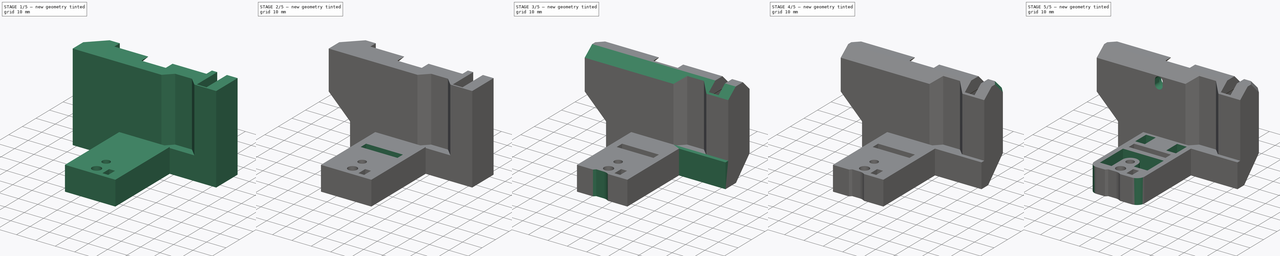
[diagram: build sequence overview — one tinted view per stage of 5, left to right]
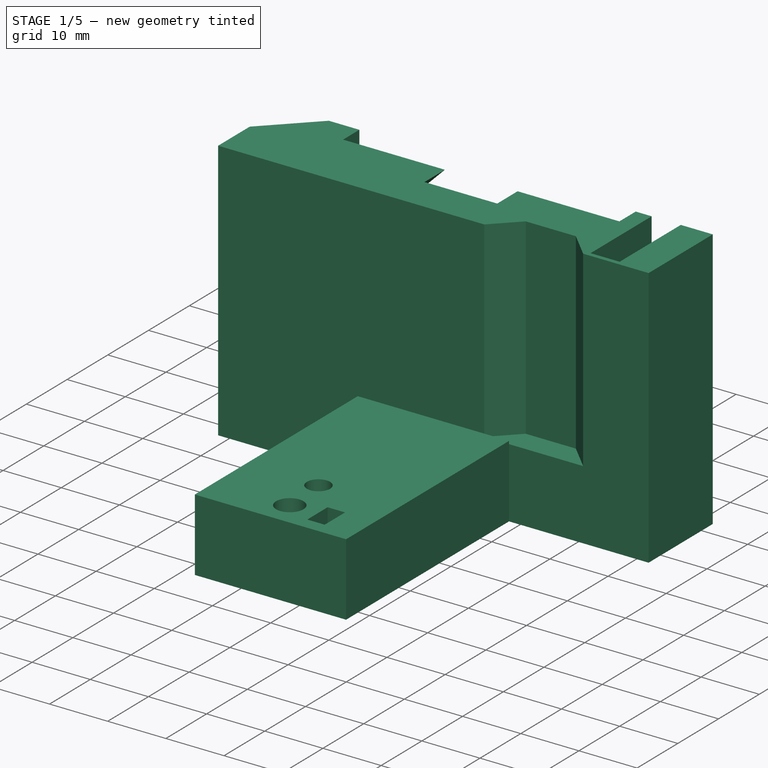
[diagram: stage 1 of 5 — iso view after this stage's code; geometry added in this stage tinted green]
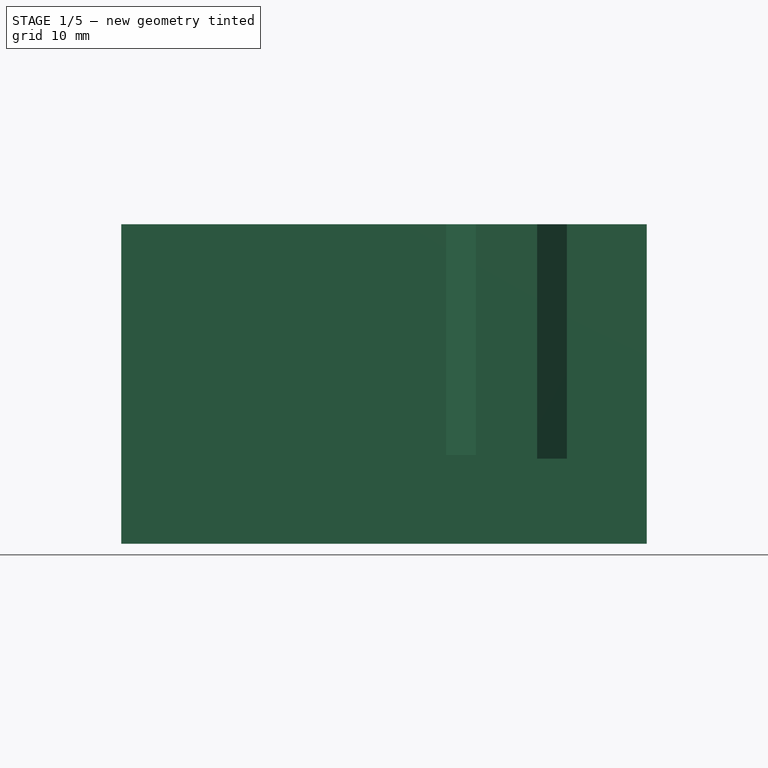
[diagram: stage 1 of 5 — front view after this stage's code; geometry added in this stage tinted green]
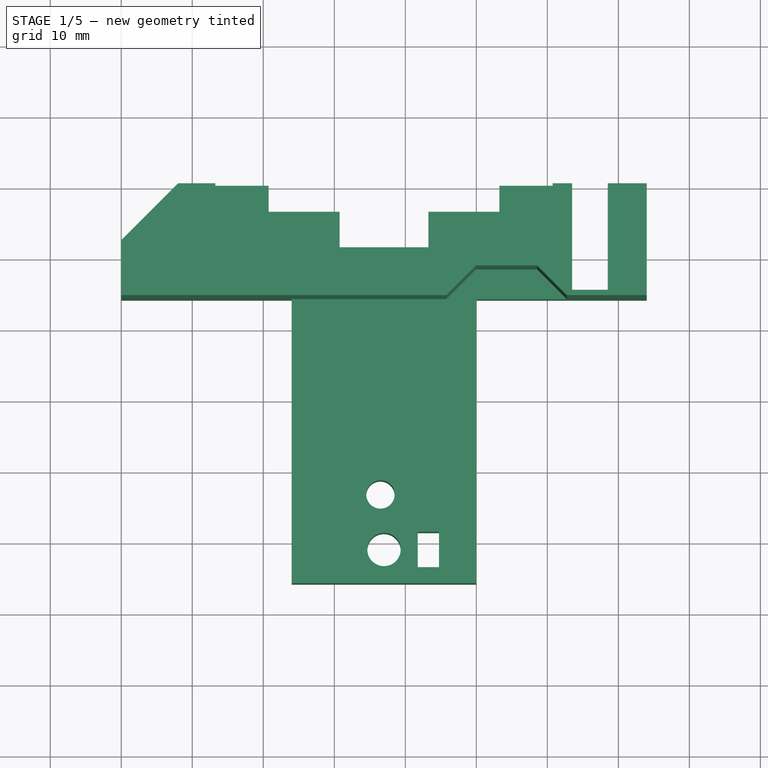
[diagram: stage 1 of 5 — top view after this stage's code; geometry added in this stage tinted green]
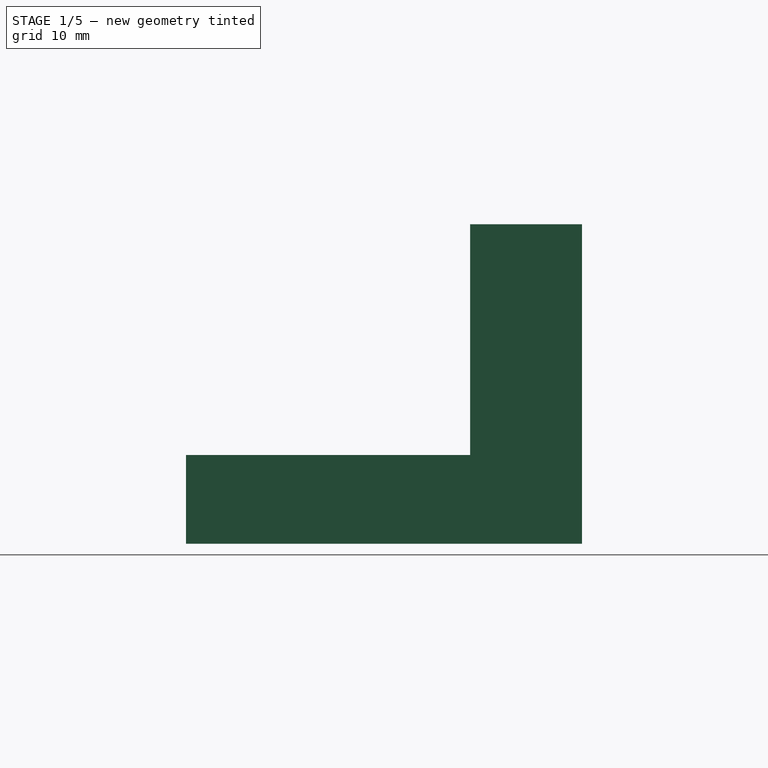
[diagram: stage 1 of 5 — right view after this stage's code; geometry added in this stage tinted green]
FCSTD DOCUMENT  (FreeCAD 0.18R4 (GitTag))
Label: x_carriage_cover_v2
License: All rights reserved
LicenseURL: http://en.wikipedia.org/wiki/All_rights_reserved
objects: Sketcher::SketchObject×20, PartDesign::Pocket×17, PartDesign::Fillet×5, PartDesign::Chamfer×4, PartDesign::Pad×3, PartDesign::Body×1
note: 70 computed .brp shape members not serialized (recipe doc carries the construction recipe); baked Part::Feature solids carry a one-line shape summary decoded from their .brp

FEATURE [Sketcher::SketchObject] Sketch
  MapMode = 5
  Support = -> [XY_Plane]
  sketch-geometry (8):
    g0: LineSegment StartX=74 StartY=-15.75 StartZ=0 EndX=74 EndY=0 EndZ=0
    g1: LineSegment StartX=74 StartY=0 StartZ=0 EndX=0 EndY=0 EndZ=0
    g2: LineSegment StartX=0 StartY=0 StartZ=0 EndX=0 EndY=-15.75 EndZ=0
    g3: LineSegment StartX=0 StartY=-15.75 StartZ=0 EndX=24 EndY=-15.75 EndZ=0
    g4: LineSegment StartX=24 StartY=-15.75 StartZ=0 EndX=24 EndY=-55.75 EndZ=0
    g5: LineSegment StartX=24 StartY=-55.75 StartZ=0 EndX=50 EndY=-55.75 EndZ=0
    g6: LineSegment StartX=50 StartY=-55.75 StartZ=0 EndX=50 EndY=-15.75 EndZ=0
    g7: LineSegment StartX=50 StartY=-15.75 StartZ=0 EndX=74 EndY=-15.75 EndZ=0
  constraints (23):
    c: PointOnObject(g2,g-2)
    c: Vertical(g0)
    c: Coincident(g0,g1)
    c: Coincident(g1,g-1)
    c: Horizontal(g1)
    c: Coincident(g1,g2)
    c: DistanceX(g2,g0) = 74
    c: DistanceY(g0,g0) = 15.75
    c: Coincident(g2,g3)
    c: Horizontal(g3)
    c: Coincident(g3,g4)
    c: Vertical(g4)
    c: Coincident(g4,g5)
    c: Horizontal(g5)
    c: Coincident(g5,g6)
    c: Vertical(g6)
    c: Coincident(g6,g7)
    c: Coincident(g7,g0)
    c: Horizontal(g7)
    c: Equal(g2,g0)
    c: Equal(g3,g7)
    c: DistanceX(g5,g5) = 26
    c: DistanceY(g6,g6) = 40
FEATURE [PartDesign::Pad] Pad
  Length = 45
  Length2 = 100
  Profile = -> Sketch
  Refine = true
  Type = 0
FEATURE [Sketcher::SketchObject] Sketch001
  MapMode = 5
  Placement = pos=(0,0,0) rot=(1,0,0;3.14159rad)
  Support = -> [Pad]
  sketch-geometry (13):
    g0: Circle CenterX=36.5 CenterY=43.25 CenterZ=0 NormalX=0 NormalY=0 NormalZ=1 AngleXU=0 Radius=2
    g1: Circle CenterX=37 CenterY=51 CenterZ=0 NormalX=0 NormalY=0 NormalZ=1 AngleXU=0 Radius=2.35
    g2: LineSegment StartX=41.75 StartY=53.5 StartZ=0 EndX=44.75 EndY=53.5 EndZ=0
    g3: LineSegment StartX=44.75 StartY=53.5 StartZ=0 EndX=44.75 EndY=48.5 EndZ=0
    g4: LineSegment StartX=44.75 StartY=48.5 StartZ=0 EndX=41.75 EndY=48.5 EndZ=0
    g5: LineSegment StartX=41.75 StartY=48.5 StartZ=0 EndX=41.75 EndY=53.5 EndZ=0
    g6: LineSegment StartX=0 StartY=8 StartZ=0 EndX=8 EndY=0 EndZ=0
    g7: LineSegment StartX=8 StartY=0 StartZ=0 EndX=0 EndY=0 EndZ=0
    g8: LineSegment StartX=0 StartY=0 StartZ=0 EndX=0 EndY=8 EndZ=0
    g9: LineSegment StartX=68.5 StartY=0 StartZ=0 EndX=63.5 EndY=0 EndZ=0
    g10: LineSegment StartX=63.5 StartY=0 StartZ=0 EndX=63.5 EndY=15 EndZ=0
    g11: LineSegment StartX=63.5 StartY=15 StartZ=0 EndX=68.5 EndY=15 EndZ=0
    g12: LineSegment StartX=68.5 StartY=15 StartZ=0 EndX=68.5 EndY=0 EndZ=0
  constraints (38):
    c: DistanceX(g0) = 36.5
    c: DistanceY(g0) = 43.25
    c: Radius(g0) = 2
    c: Radius(g1) = 2.35
    c: DistanceX(g0,g1) = 0.5
    c: DistanceY(g1) = 51
    c: Coincident(g2,g3)
    c: Coincident(g3,g4)
    c: Coincident(g4,g5)
    c: Coincident(g5,g2)
    c: Horizontal(g2)
    c: Horizontal(g4)
    c: Vertical(g3)
    c: Vertical(g5)
    c: DistanceX(g1,g2) = 4.75
    c: DistanceX(g2,g2) = 3
    c: DistanceY(g3,g3) = 5
    c: DistanceY(g4,g1) = 2.5
    c: PointOnObject(g6,g-2)
    c: Coincident(g6,g7)
    c: Coincident(g7,g-1)
    c: Horizontal(g7)
    c: Coincident(g7,g8)
    c: Coincident(g8,g6)
    c: Equal(g7,g8)
    c: DistanceY(g8,g8) = 8
    c: Coincident(g9,g10)
    c: Coincident(g10,g11)
    c: Coincident(g11,g12)
    c: Coincident(g12,g9)
    c: Horizontal(g9)
    c: Horizontal(g11)
    c: Vertical(g10)
    c: Vertical(g12)
    c: PointOnObject(g9,g-1)
    c: DistanceY(g10,g10) = 15
    c: DistanceX(g11,g11) = 5
    c: DistanceX(g9) = 63.5
FEATURE [PartDesign::Pocket] Pocket
  BaseFeature = -> Pad
  Length = 5
  Length2 = 100
  Profile = -> Sketch001
  Refine = true
  Type = 1
FEATURE [Sketcher::SketchObject] Sketch002
  MapMode = 5
  Placement = pos=(74,0,0) rot=(0.57735,0.57735,0.57735;2.0944rad)
  Support = -> [Pocket]
  sketch-geometry (4):
    g0: LineSegment StartX=-15.75 StartY=45 StartZ=0 EndX=-60.75 EndY=45 EndZ=0
    g1: LineSegment StartX=-60.75 StartY=45 StartZ=0 EndX=-60.75 EndY=12.5 EndZ=0
    g2: LineSegment StartX=-60.75 StartY=12.5 StartZ=0 EndX=-15.75 EndY=12.5 EndZ=0
    g3: LineSegment StartX=-15.75 StartY=12.5 StartZ=0 EndX=-15.75 EndY=45 EndZ=0
  constraints (12):
    c: Coincident(g0,g1)
    c: Coincident(g1,g2)
    c: Coincident(g2,g3)
    c: Coincident(g3,g0)
    c: Horizontal(g0)
    c: Horizontal(g2)
    c: Vertical(g1)
    c: Vertical(g3)
    c: DistanceX(g2) = -15.75
    c: DistanceY(g2) = 12.5
    c: DistanceY(g3,g3) = 32.5
    c: DistanceX(g0,g0) = 45
FEATURE [PartDesign::Pocket] Pocket001
  BaseFeature = -> Pocket
  Length = 5
  Length2 = 100
  Profile = -> Sketch002
  Refine = true
  Type = 1
FEATURE [Sketcher::SketchObject] Sketch003
  MapMode = 5
  Placement = pos=(0,0,45) rot=(0,0,1;0rad)
  Support = -> [Pocket001]
  sketch-geometry (4):
    g0: LineSegment StartX=45.75 StartY=-15.75 StartZ=0 EndX=49.9375 EndY=-11.5625 EndZ=0
    g1: LineSegment StartX=49.9375 StartY=-11.5625 StartZ=0 EndX=58.5625 EndY=-11.5625 EndZ=0
    g2: LineSegment StartX=58.5625 StartY=-11.5625 StartZ=0 EndX=62.75 EndY=-15.75 EndZ=0
    g3: LineSegment StartX=62.75 StartY=-15.75 StartZ=0 EndX=45.75 EndY=-15.75 EndZ=0
  constraints (12):
    c: Coincident(g0,g1)
    c: Horizontal(g1)
    c: Coincident(g1,g2)
    c: Coincident(g2,g3)
    c: Coincident(g3,g0)
    c: Horizontal(g3)
    c: DistanceX(g0) = 45.75
    c: DistanceY(g0) = -15.75
    c: Angle(g0) = 0.785398
    c: Perpendicular(g2,g0)
    c: DistanceX(g1,g1) = 8.625
    c: DistanceX(g3,g3) = 17
FEATURE [PartDesign::Pocket] Pocket002
  BaseFeature = -> Pocket001
  Length = 33
  Length2 = 100
  Profile = -> Sketch003
  Refine = true
  Type = 0
FEATURE [Sketcher::SketchObject] Sketch004
  MapMode = 5
  Placement = pos=(0,0,0) rot=(0,0.707107,0.707107;3.14159rad)
  Support = -> [Pocket002]
  sketch-geometry (9):
    g0: LineSegment StartX=-43.25 StartY=45 StartZ=0 EndX=-53.25 EndY=35 EndZ=0
    g1: LineSegment StartX=-53.25 StartY=35 StartZ=0 EndX=-53.25 EndY=0 EndZ=0
    g2: LineSegment StartX=-53.25 StartY=0 StartZ=0 EndX=-20.75 EndY=0 EndZ=0
    g3: LineSegment StartX=-20.75 StartY=0 StartZ=0 EndX=-20.75 EndY=35 EndZ=0
    g4: LineSegment StartX=-20.75 StartY=35 StartZ=0 EndX=-30.75 EndY=45 EndZ=0
    g5: LineSegment StartX=-30.75 StartY=45 StartZ=0 EndX=-43.25 EndY=45 EndZ=0
    g6: Circle CenterX=-57 CenterY=21 CenterZ=0 NormalX=0 NormalY=0 NormalZ=1 AngleXU=0 Radius=2.35
    g7: Circle CenterX=-17 CenterY=21 CenterZ=0 NormalX=0 NormalY=0 NormalZ=1 AngleXU=0 Radius=2.35
    g8: LineSegment [constr] StartX=-57 StartY=21 StartZ=0 EndX=-17 EndY=21 EndZ=0
  constraints (26):
    c: Coincident(g0,g1)
    c: PointOnObject(g1,g-1)
    c: Vertical(g1)
    c: Coincident(g1,g2)
    c: Horizontal(g2)
    c: Coincident(g2,g3)
    c: Vertical(g3)
    c: Coincident(g3,g4)
    c: Coincident(g4,g5)
    c: Horizontal(g5)
    c: Coincident(g0,g5)
    c: DistanceY(g4) = 45
    c: Angle(g4) = 2.35619
    c: Perpendicular(g0,g4)
    c: DistanceX(g2) = -20.75
    c: DistanceX(g2,g2) = 32.5
    c: DistanceY(g3,g3) = 35
    c: Equal(g1,g3)
    c: Coincident(g8,g6)
    c: Coincident(g8,g7)
    c: Horizontal(g8)
    c: DistanceX(g7) = -17
    c: DistanceY(g7) = 21
    c: DistanceX(g8,g8) = 40
    c: Radius(g7) = 2.35
    c: Equal(g7,g6)
FEATURE [PartDesign::Pocket] Pocket003
  BaseFeature = -> Pocket002
  Length = 9
  Length2 = 100
  Profile = -> Sketch004
  Refine = true
  Type = 0
FEATURE [Sketcher::SketchObject] Sketch005
  MapMode = 5
  Placement = pos=(0,0,0) rot=(0,0.707107,0.707107;3.14159rad)
  Support = -> [Pocket003]
  sketch-geometry (4):
    g0: LineSegment StartX=-60.75 StartY=45 StartZ=0 EndX=-13.25 EndY=45 EndZ=0
    g1: LineSegment StartX=-13.25 StartY=45 StartZ=0 EndX=-13.25 EndY=25 EndZ=0
    g2: LineSegment StartX=-13.25 StartY=25 StartZ=0 EndX=-60.75 EndY=25 EndZ=0
    g3: LineSegment StartX=-60.75 StartY=25 StartZ=0 EndX=-60.75 EndY=45 EndZ=0
  constraints (12):
    c: Coincident(g0,g1)
    c: Coincident(g1,g2)
    c: Coincident(g2,g3)
    c: Coincident(g3,g0)
    c: Horizontal(g0)
    c: Horizontal(g2)
    c: Vertical(g1)
    c: Vertical(g3)
    c: DistanceX(g0) = -13.25
    c: DistanceY(g0) = 45
    c: DistanceX(g0,g0) = 47.5
    c: DistanceY(g1,g1) = 20
FEATURE [PartDesign::Pocket] Pocket004
  BaseFeature = -> Pocket003
  Length = 4
  Length2 = 100
  Profile = -> Sketch005
  Refine = true
  Type = 0
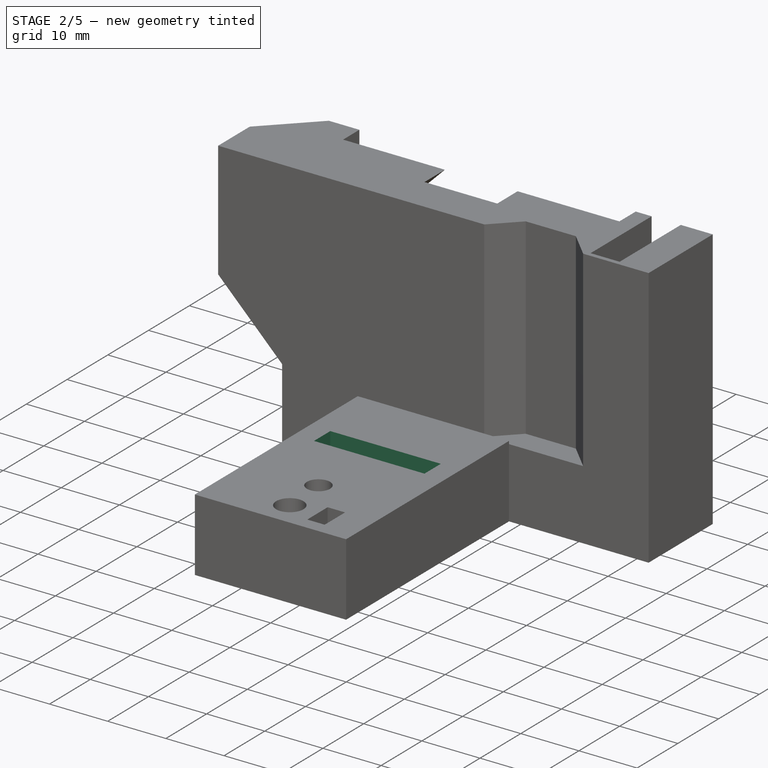
[diagram: stage 2 of 5 — iso view after this stage's code; geometry added in this stage tinted green]
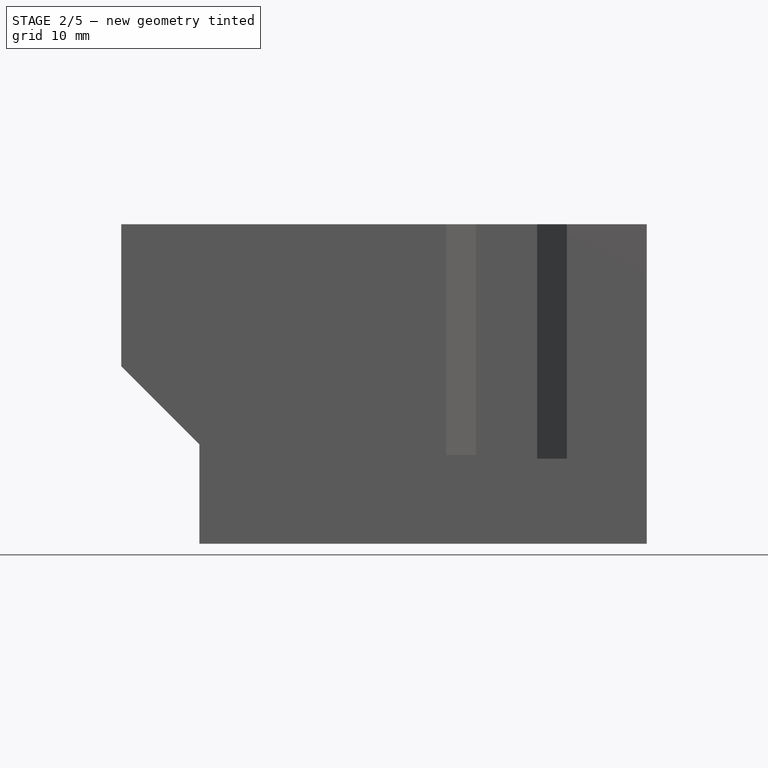
[diagram: stage 2 of 5 — front view after this stage's code; geometry added in this stage tinted green]
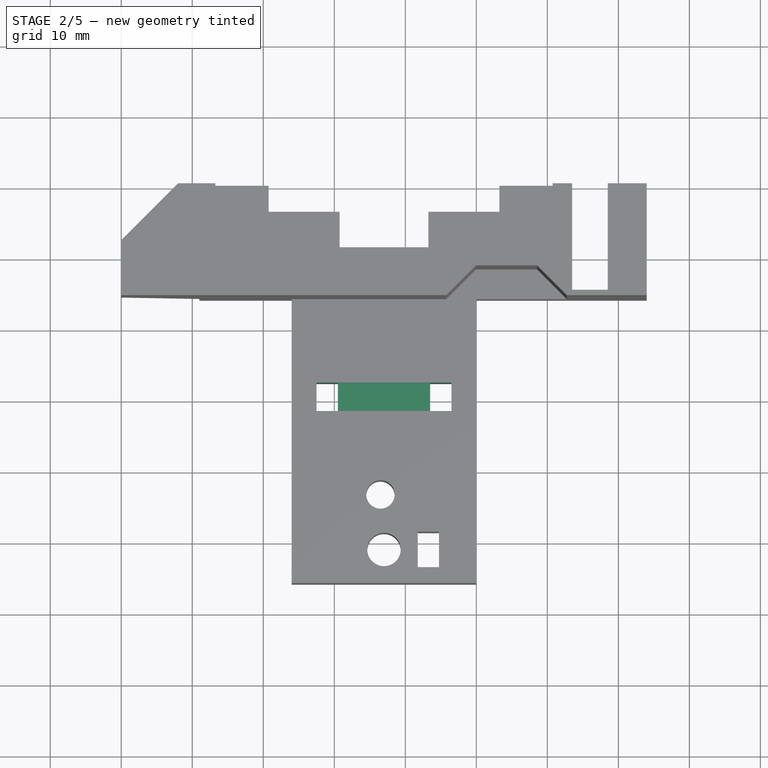
[diagram: stage 2 of 5 — top view after this stage's code; geometry added in this stage tinted green]
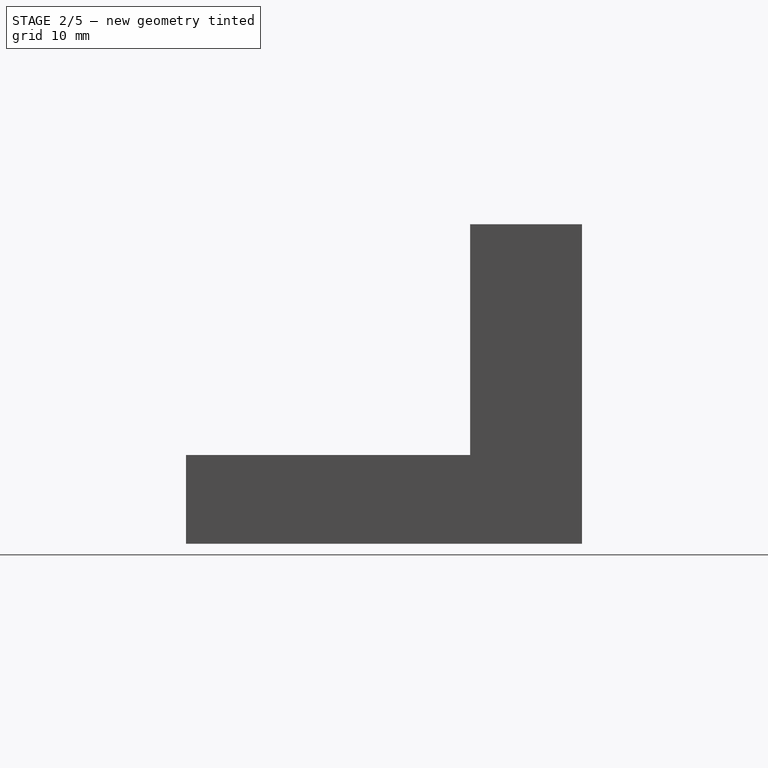
[diagram: stage 2 of 5 — right view after this stage's code; geometry added in this stage tinted green]
FEATURE [Sketcher::SketchObject] Sketch006
  MapMode = 5
  Placement = pos=(0,-9,2e-15) rot=(0,0.707107,0.707107;3.14159rad)
  Support = -> [Pocket004]
  sketch-geometry (4):
    g0: ArcOfCircle CenterX=-37 CenterY=4 CenterZ=0 NormalX=0 NormalY=0 NormalZ=1 AngleXU=0 Radius=4.5 StartAngle=7e-16 EndAngle=3.14159
    g1: ArcOfCircle CenterX=-37 CenterY=2e-16 CenterZ=0 NormalX=0 NormalY=0 NormalZ=1 AngleXU=0 Radius=4.5 StartAngle=3.14159 EndAngle=6.28319
    g2: LineSegment StartX=-41.5 StartY=4 StartZ=0 EndX=-41.5 EndY=0 EndZ=0
    g3: LineSegment StartX=-32.5 StartY=4 StartZ=0 EndX=-32.5 EndY=-9e-16 EndZ=0
  constraints (10):
    c: Tangent(g0,g3) = 1.5708
    c: Tangent(g0,g2) = -1.5708
    c: Tangent(g2,g1) = -1.5708
    c: Tangent(g3,g1) = 1.5708
    c: Vertical(g2)
    c: Equal(g0,g1)
    c: DistanceX(g0) = -37
    c: DistanceY(g0) = 4
    c: PointOnObject(g1,g-1)
    c: Radius(g0) = 4.5
FEATURE [PartDesign::Pocket] Pocket005
  BaseFeature = -> Pocket004
  Length = 30
  Length2 = 100
  Profile = -> Sketch006
  Refine = true
  Type = 0
FEATURE [Sketcher::SketchObject] Sketch007
  MapMode = 5
  Placement = pos=(0,0,0) rot=(1,0,0;3.14159rad)
  Support = -> [Pocket005]
  sketch-geometry (4):
    g0: LineSegment StartX=27.5 StartY=31.5 StartZ=0 EndX=46.5 EndY=31.5 EndZ=0
    g1: LineSegment StartX=46.5 StartY=31.5 StartZ=0 EndX=46.5 EndY=27.5 EndZ=0
    g2: LineSegment StartX=46.5 StartY=27.5 StartZ=0 EndX=27.5 EndY=27.5 EndZ=0
    g3: LineSegment StartX=27.5 StartY=27.5 StartZ=0 EndX=27.5 EndY=31.5 EndZ=0
  constraints (12):
    c: Coincident(g0,g1)
    c: Coincident(g1,g2)
    c: Coincident(g2,g3)
    c: Coincident(g3,g0)
    c: Horizontal(g0)
    c: Horizontal(g2)
    c: Vertical(g1)
    c: Vertical(g3)
    c: DistanceX(g2) = 27.5
    c: DistanceY(g2) = 27.5
    c: DistanceY(g3,g3) = 4
    c: DistanceX(g0,g0) = 19
FEATURE [PartDesign::Pocket] Pocket006
  BaseFeature = -> Pocket005
  Length = 3
  Length2 = 100
  Profile = -> Sketch007
  Refine = true
  Type = 0
FEATURE [Sketcher::SketchObject] Sketch008
  ExternalGeometry = -> [Pocket006]
  MapMode = 5
  Placement = pos=(0,-31.5,0) rot=(0,0.707107,0.707107;3.14159rad)
  Support = -> [Pocket006]
  sketch-geometry (8):
    g0: LineSegment StartX=-43.5 StartY=3 StartZ=0 EndX=-43.5 EndY=10 EndZ=0
    g1: LineSegment StartX=-43.5 StartY=10 StartZ=0 EndX=-30.5 EndY=10 EndZ=0
    g2: LineSegment StartX=-30.5 StartY=10 StartZ=0 EndX=-30.5 EndY=3 EndZ=0
    g3: LineSegment StartX=-30.5 StartY=3 StartZ=0 EndX=-27.5 EndY=3 EndZ=0
    g4: LineSegment StartX=-27.5 StartY=3 StartZ=0 EndX=-27.5 EndY=12.5 EndZ=0
    g5: LineSegment StartX=-27.5 StartY=12.5 StartZ=0 EndX=-46.5 EndY=12.5 EndZ=0
    g6: LineSegment StartX=-46.5 StartY=12.5 StartZ=0 EndX=-46.5 EndY=3 EndZ=0
    g7: LineSegment StartX=-46.5 StartY=3 StartZ=0 EndX=-43.5 EndY=3 EndZ=0
  constraints (22):
    c: Vertical(g0)
    c: Coincident(g0,g1)
    c: Horizontal(g1)
    c: Coincident(g1,g2)
    c: Vertical(g2)
    c: Coincident(g2,g3)
    c: Horizontal(g3)
    c: Coincident(g3,g4)
    c: Vertical(g4)
    c: Coincident(g4,g5)
    c: Horizontal(g5)
    c: Coincident(g5,g6)
    c: Vertical(g6)
    c: Coincident(g6,g7)
    c: Coincident(g7,g0)
    c: Horizontal(g7)
    c: Coincident(g3,g-4)
    c: Coincident(g6,g-3)
    c: DistanceY(g6,g6) = 9.5
    c: Equal(g3,g7)
    c: DistanceX(g7,g7) = 3
    c: DistanceY(g2,g2) = 7
FEATURE [PartDesign::Pocket] Pocket007
  BaseFeature = -> Pocket006
  Length = 4
  Length2 = 100
  Profile = -> Sketch008
  Refine = true
  Reversed = true
  Type = 0
FEATURE [Sketcher::SketchObject] Sketch009
  MapMode = 5
  Placement = pos=(0,0,0) rot=(0,0.707107,0.707107;3.14159rad)
  Support = -> [Pocket007]
  sketch-geometry (4):
    g0: LineSegment StartX=0 StartY=25 StartZ=0 EndX=-11 EndY=14 EndZ=0
    g1: LineSegment StartX=-11 StartY=14 StartZ=0 EndX=-11 EndY=0 EndZ=0
    g2: LineSegment StartX=-11 StartY=0 StartZ=0 EndX=0 EndY=0 EndZ=0
    g3: LineSegment StartX=0 StartY=0 StartZ=0 EndX=0 EndY=25 EndZ=0
  constraints (11):
    c: PointOnObject(g0,g-2)
    c: Coincident(g0,g1)
    c: Vertical(g1)
    c: Coincident(g1,g2)
    c: Coincident(g2,g-1)
    c: Horizontal(g2)
    c: Coincident(g2,g3)
    c: Coincident(g3,g0)
    c: DistanceY(g3,g3) = 25
    c: Angle(g0) = -2.35619
    c: DistanceX(g0,g0) = 11
FEATURE [PartDesign::Pocket] Pocket008
  BaseFeature = -> Pocket007
  Length = 5
  Length2 = 100
  Profile = -> Sketch009
  Refine = true
  Type = 1
FEATURE [Sketcher::SketchObject] Sketch010
  MapMode = 5
  Placement = pos=(0,0,0) rot=(0,0.707107,0.707107;3.14159rad)
  Support = -> [Pocket008]
  sketch-geometry (4):
    g0: LineSegment StartX=-63.5 StartY=39.25 StartZ=0 EndX=-62.25 EndY=38 EndZ=0
    g1: LineSegment StartX=-62.25 StartY=38 StartZ=0 EndX=-62.25 EndY=27 EndZ=0
    g2: LineSegment StartX=-62.25 StartY=27 StartZ=0 EndX=-63.5 EndY=27 EndZ=0
    g3: LineSegment StartX=-63.5 StartY=27 StartZ=0 EndX=-63.5 EndY=39.25 EndZ=0
  constraints (12):
    c: Coincident(g0,g1)
    c: Vertical(g1)
    c: Coincident(g1,g2)
    c: Horizontal(g2)
    c: Coincident(g2,g3)
    c: Coincident(g3,g0)
    c: Vertical(g3)
    c: Angle(g0) = -0.785398
    c: DistanceX(g2) = -63.5
    c: DistanceY(g2) = 27
    c: DistanceX(g2,g2) = 1.25
    c: DistanceY(g3,g3) = 12.25
FEATURE [PartDesign::Pocket] Pocket009
  BaseFeature = -> Pocket008
  Length = 15
  Length2 = 100
  Profile = -> Sketch010
  Refine = true
  Type = 0
FEATURE [Sketcher::SketchObject] Sketch011
  MapMode = 5
  Placement = pos=(32.5,0,0) rot=(0.57735,0.57735,0.57735;2.0944rad)
  Support = -> [Pocket009]
  sketch-geometry (3):
    g0: LineSegment StartX=-39 StartY=0 StartZ=0 EndX=-39 EndY=8.5 EndZ=0
    g1: LineSegment StartX=-39 StartY=8.5 StartZ=0 EndX=-30.5 EndY=8.5 EndZ=0
    g2: LineSegment StartX=-30.5 StartY=8.5 StartZ=0 EndX=-39 EndY=0 EndZ=0
  constraints (9):
    c: PointOnObject(g0,g-1)
    c: Vertical(g0)
    c: Coincident(g0,g1)
    c: Horizontal(g1)
    c: Coincident(g1,g2)
    c: Coincident(g2,g0)
    c: DistanceX(g0) = -39
    c: DistanceY(g0) = 8.5
    c: Equal(g1,g0)
FEATURE [PartDesign::Pad] Pad001
  BaseFeature = -> Pocket009
  Length = 9
  Length2 = 100
  Profile = -> Sketch011
  Refine = true
  Type = 0
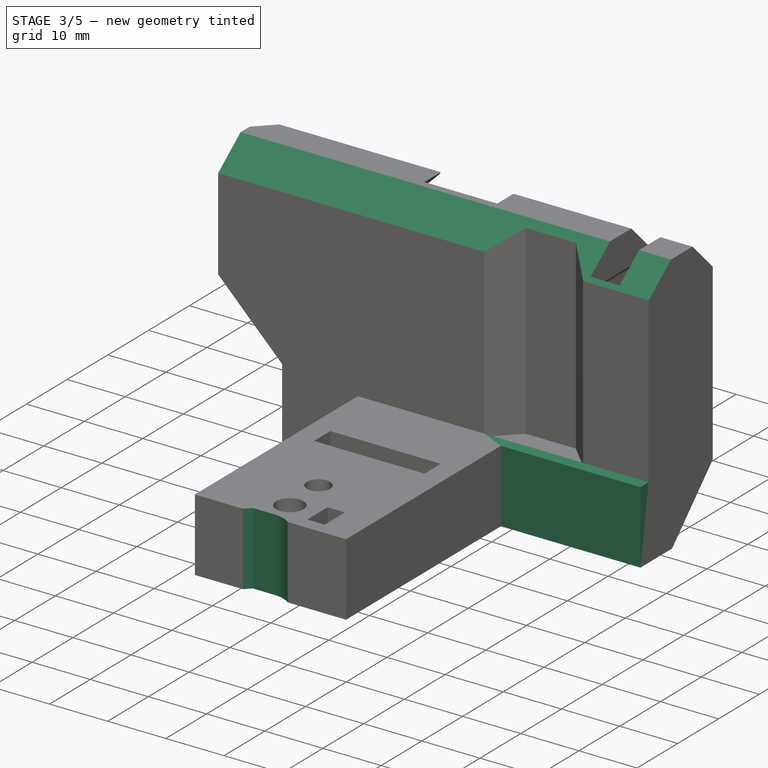
[diagram: stage 3 of 5 — iso view after this stage's code; geometry added in this stage tinted green]
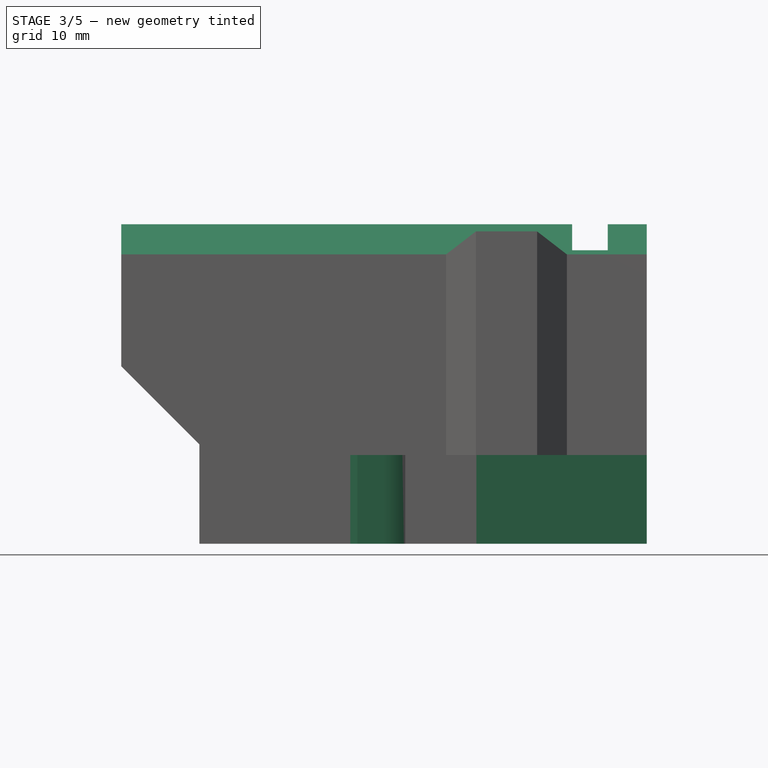
[diagram: stage 3 of 5 — front view after this stage's code; geometry added in this stage tinted green]
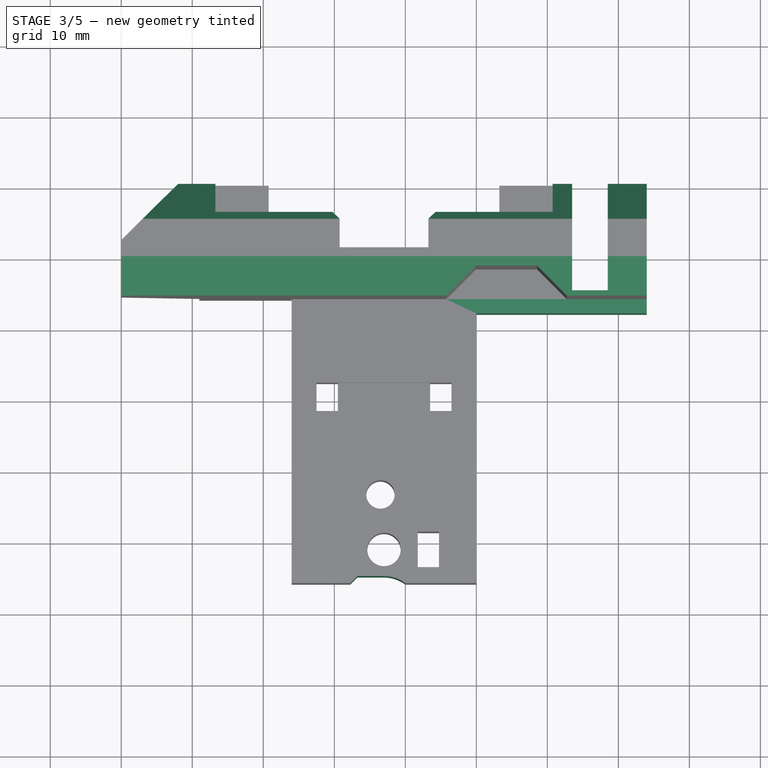
[diagram: stage 3 of 5 — top view after this stage's code; geometry added in this stage tinted green]
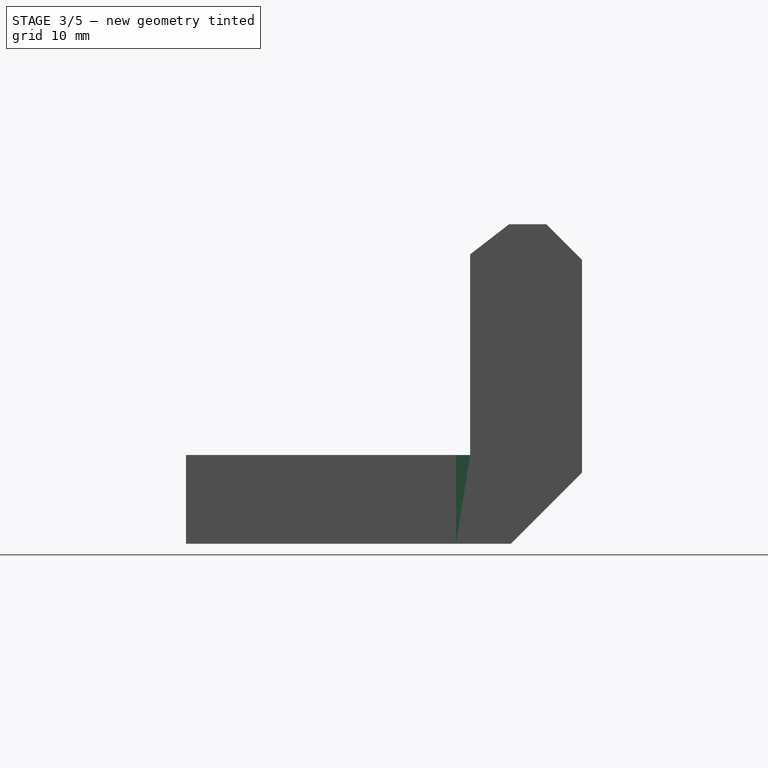
[diagram: stage 3 of 5 — right view after this stage's code; geometry added in this stage tinted green]
FEATURE [Sketcher::SketchObject] Sketch012
  MapMode = 5
  Placement = pos=(0,0,0) rot=(1,0,0;3.14159rad)
  Support = -> [Pad001]
  sketch-geometry (5):
    g0: LineSegment StartX=30 StartY=58 StartZ=0 EndX=33.25 EndY=54.75 EndZ=0
    g1: LineSegment StartX=33.25 StartY=54.75 StartZ=0 EndX=37 EndY=54.75 EndZ=0
    g2: ArcOfCircle CenterX=37 CenterY=59.75 CenterZ=0 NormalX=0 NormalY=0 NormalZ=1 AngleXU=0 Radius=5 StartAngle=4.71239 EndAngle=6.28319
    g3: LineSegment StartX=30 StartY=58 StartZ=0 EndX=30 EndY=59.75 EndZ=0
    g4: LineSegment StartX=30 StartY=59.75 StartZ=0 EndX=42 EndY=59.75 EndZ=0
  constraints (15):
    c: Coincident(g0,g1)
    c: Horizontal(g1)
    c: Coincident(g0,g3)
    c: Vertical(g3)
    c: Coincident(g3,g4)
    c: Horizontal(g4)
    c: Coincident(g2,g4)
    c: PointOnObject(g2,g4)
    c: Radius(g2) = 5
    c: Tangent(g2,g1) = -1.5708
    c: Angle(g0) = -0.785398
    c: DistanceX(g1,g1) = 3.75
    c: DistanceX(g2) = 37
    c: DistanceY(g2) = 59.75
    c: DistanceX(g4,g4) = 12
FEATURE [PartDesign::Pocket] Pocket010
  BaseFeature = -> Pad001
  Length = 5
  Length2 = 100
  Profile = -> Sketch012
  Refine = true
  Type = 1
FEATURE [Sketcher::SketchObject] Sketch013
  MapMode = 5
  Placement = pos=(0,0,0) rot=(1,0,0;3.14159rad)
  Support = -> [Pocket010]
  sketch-geometry (1):
    g0: Circle CenterX=37 CenterY=51 CenterZ=0 NormalX=0 NormalY=0 NormalZ=1 AngleXU=0 Radius=2.75
  constraints (3):
    c: Radius(g0) = 2.75
    c: DistanceX(g0) = 37
    c: DistanceY(g0) = 51
FEATURE [PartDesign::Pocket] Pocket011
  BaseFeature = -> Pocket010
  Length = 0.75
  Length2 = 100
  Profile = -> Sketch013
  Refine = true
  Type = 0
FEATURE [Sketcher::SketchObject] Sketch014
  MapMode = 5
  Placement = pos=(0,0,0) rot=(0,0.707107,0.707107;3.14159rad)
  Support = -> [Pocket011]
  sketch-geometry (3):
    g0: Circle CenterX=-57 CenterY=21 CenterZ=0 NormalX=0 NormalY=0 NormalZ=1 AngleXU=0 Radius=2.75
    g1: Circle CenterX=-17 CenterY=21 CenterZ=0 NormalX=0 NormalY=0 NormalZ=1 AngleXU=0 Radius=2.75
    g2: LineSegment [constr] StartX=-57 StartY=21 StartZ=0 EndX=-17 EndY=21 EndZ=0
  constraints (8):
    c: DistanceX(g1) = -17
    c: DistanceY(g1) = 21
    c: Radius(g1) = 2.75
    c: Coincident(g2,g0)
    c: Coincident(g2,g1)
    c: Horizontal(g2)
    c: DistanceX(g2,g2) = 40
    c: Equal(g0,g1)
FEATURE [PartDesign::Pocket] Pocket012
  BaseFeature = -> Pocket011
  Length = 0.75
  Length2 = 100
  Profile = -> Sketch014
  Refine = true
  Type = 0
FEATURE [Sketcher::SketchObject] Sketch015
  ExternalGeometry = -> [Pocket012]
  MapMode = 5
  Placement = pos=(0,-15.75,0) rot=(1,0,0;1.5708rad)
  Support = -> [Pocket012]
  sketch-geometry (4):
    g0: LineSegment StartX=74 StartY=0 StartZ=0 EndX=50 EndY=0 EndZ=0
    g1: LineSegment StartX=50 StartY=0 StartZ=0 EndX=50 EndY=12.5 EndZ=0
    g2: LineSegment StartX=50 StartY=12.5 StartZ=0 EndX=74 EndY=12.5 EndZ=0
    g3: LineSegment StartX=74 StartY=12.5 StartZ=0 EndX=74 EndY=0 EndZ=0
  constraints (10):
    c: Coincident(g0,g1)
    c: Coincident(g2,g3)
    c: Coincident(g3,g0)
    c: Horizontal(g0)
    c: Horizontal(g2)
    c: Vertical(g1)
    c: Vertical(g3)
    c: Coincident(g0,g-3)
    c: Coincident(g1,g2)
    c: Coincident(g1,g-4)
FEATURE [PartDesign::Pad] Pad002
  BaseFeature = -> Pocket012
  Length = 2
  Length2 = 100
  Profile = -> Sketch015
  Refine = true
  Type = 0
FEATURE [Sketcher::SketchObject] Sketch016
  MapMode = 5
  Placement = pos=(74,0,0) rot=(0.57735,0.57735,0.57735;2.0944rad)
  Support = -> [Pad002]
  sketch-geometry (9):
    g0: LineSegment StartX=-10 StartY=0 StartZ=0 EndX=0 EndY=10 EndZ=0
    g1: LineSegment StartX=0 StartY=10 StartZ=0 EndX=0 EndY=0 EndZ=0
    g2: LineSegment StartX=0 StartY=0 StartZ=0 EndX=-10 EndY=0 EndZ=0
    g3: LineSegment StartX=-5 StartY=45 StartZ=0 EndX=0 EndY=40 EndZ=0
    g4: LineSegment StartX=0 StartY=40 StartZ=0 EndX=0 EndY=45 EndZ=0
    g5: LineSegment StartX=0 StartY=45 StartZ=0 EndX=-5 EndY=45 EndZ=0
    g6: LineSegment StartX=-15.75 StartY=40.75 StartZ=0 EndX=-10.25 EndY=45 EndZ=0
    g7: LineSegment StartX=-10.25 StartY=45 StartZ=0 EndX=-15.75 EndY=45 EndZ=0
    g8: LineSegment StartX=-15.75 StartY=45 StartZ=0 EndX=-15.75 EndY=40.75 EndZ=0
  constraints (26):
    c: PointOnObject(g0,g-1)
    c: PointOnObject(g0,g-2)
    c: Coincident(g0,g1)
    c: Coincident(g1,g-1)
    c: Coincident(g1,g2)
    c: Coincident(g2,g0)
    c: Equal(g2,g1)
    c: DistanceY(g1,g1) = 10
    c: PointOnObject(g3,g-2)
    c: Coincident(g3,g4)
    c: Vertical(g4)
    c: Coincident(g4,g5)
    c: Coincident(g5,g3)
    c: Horizontal(g5)
    c: Equal(g4,g5)
    c: DistanceY(g4,g4) = 5
    c: DistanceY(g4) = 45
    c: Coincident(g6,g7)
    c: Horizontal(g7)
    c: Coincident(g7,g8)
    c: Coincident(g8,g6)
    c: Vertical(g8)
    c: PointOnObject(g6,g5)
    c: DistanceX(g7) = -15.75
    c: DistanceY(g8,g8) = 4.25
    c: DistanceX(g7,g7) = 5.5
FEATURE [PartDesign::Pocket] Pocket013
  BaseFeature = -> Pad002
  Length = 5
  Length2 = 100
  Profile = -> Sketch016
  Refine = true
  Type = 1
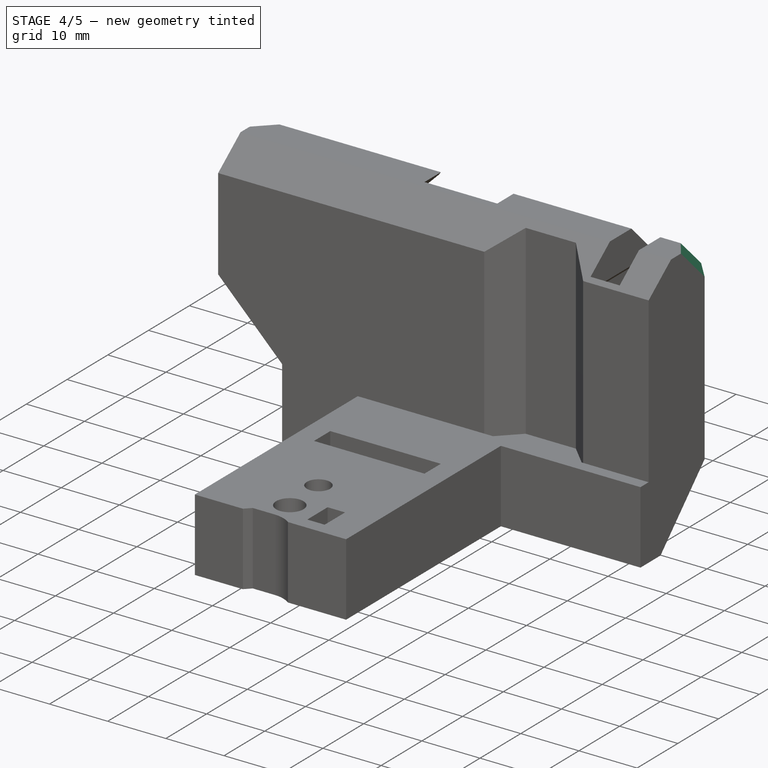
[diagram: stage 4 of 5 — iso view after this stage's code; geometry added in this stage tinted green]
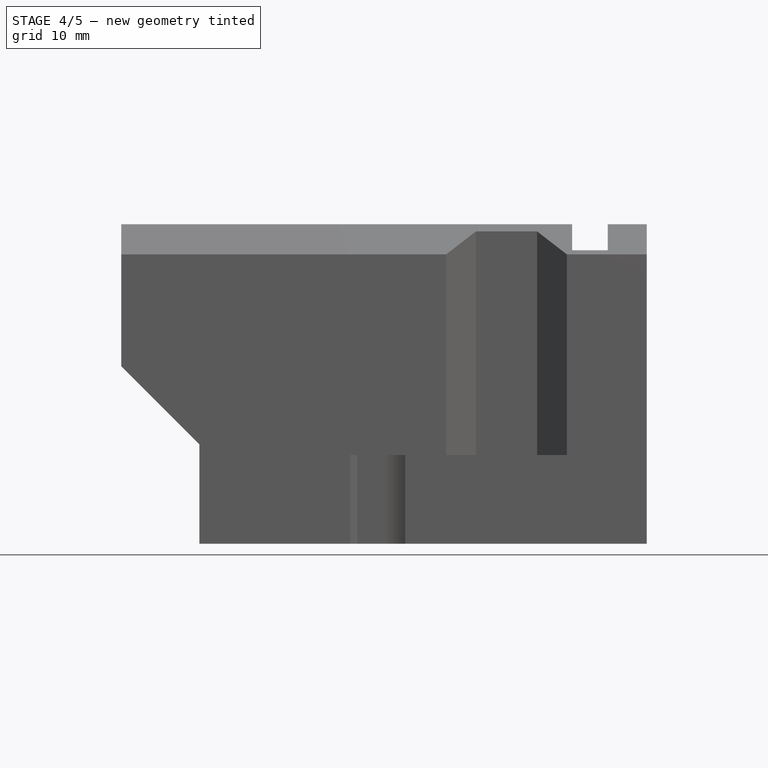
[diagram: stage 4 of 5 — front view after this stage's code; geometry added in this stage tinted green]
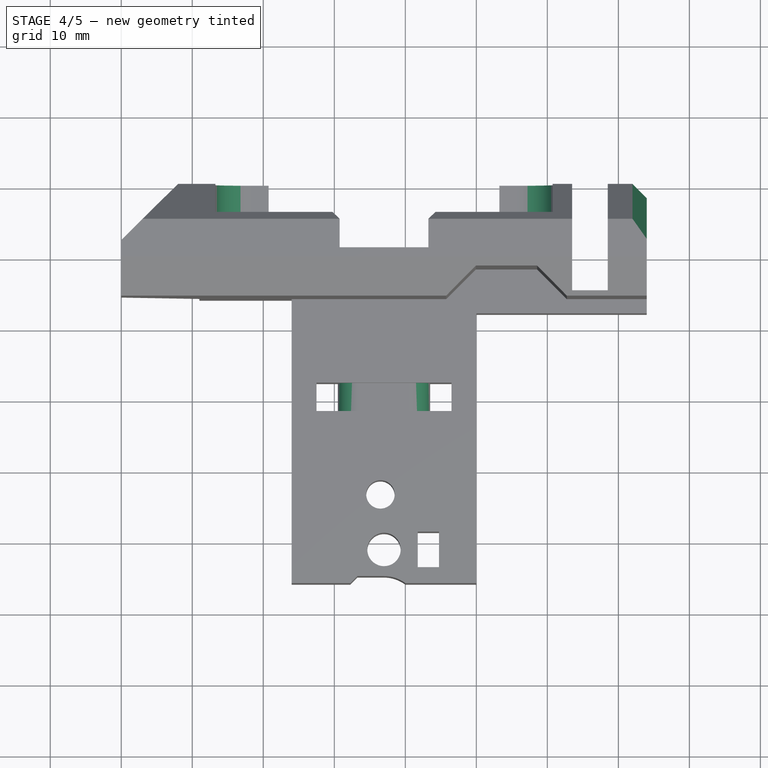
[diagram: stage 4 of 5 — top view after this stage's code; geometry added in this stage tinted green]
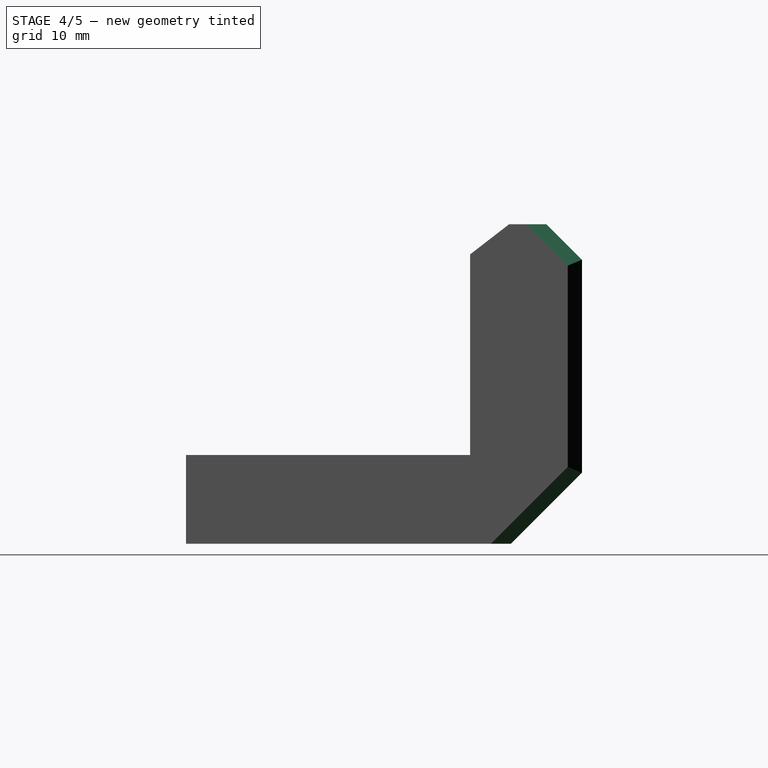
[diagram: stage 4 of 5 — right view after this stage's code; geometry added in this stage tinted green]
FEATURE [PartDesign::Chamfer] Chamfer
  Base = -> Pocket013 [Edge64,Edge65,Edge63]
  BaseFeature = -> Pocket013
  Size = 2
FEATURE [PartDesign::Fillet] Fillet
  Base = -> Chamfer [Edge177]
  BaseFeature = -> Chamfer
  Radius = 4
FEATURE [PartDesign::Chamfer] Chamfer001
  Base = -> Fillet [Edge32]
  BaseFeature = -> Fillet
  Size = 1.5
FEATURE [PartDesign::Chamfer] Chamfer002
  Base = -> Chamfer001 [Edge35,Edge34,Edge36,Edge37]
  BaseFeature = -> Chamfer001
  Size = 1
FEATURE [PartDesign::Fillet] Fillet001
  Base = -> Chamfer002 [Edge190,Edge189]
  BaseFeature = -> Chamfer002
  Radius = 3
FEATURE [PartDesign::Fillet] Fillet002
  Base = -> Fillet001 [Edge248,Edge243]
  BaseFeature = -> Fillet001
  Radius = 5
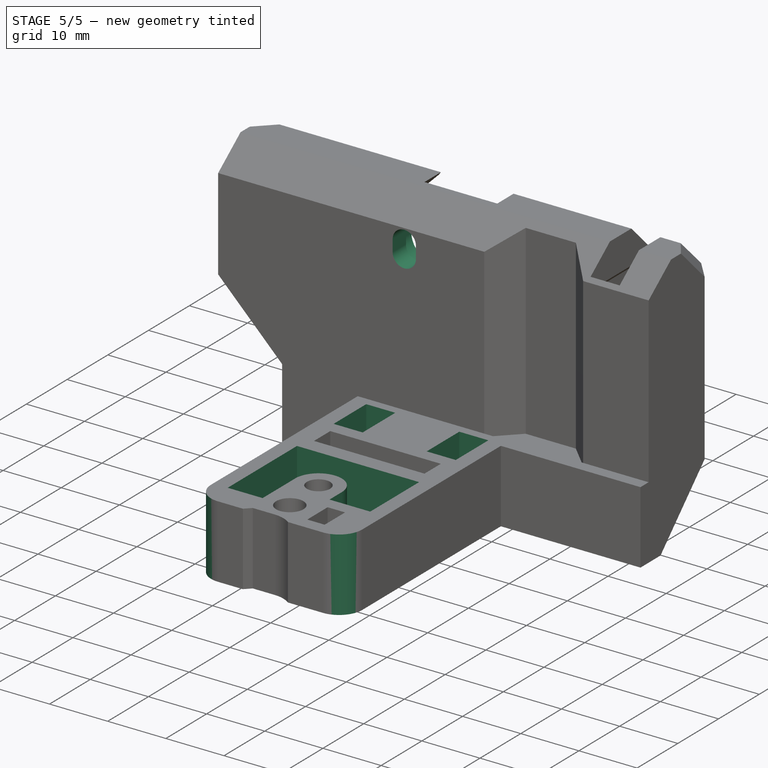
[diagram: stage 5 of 5 — iso view after this stage's code; geometry added in this stage tinted green]
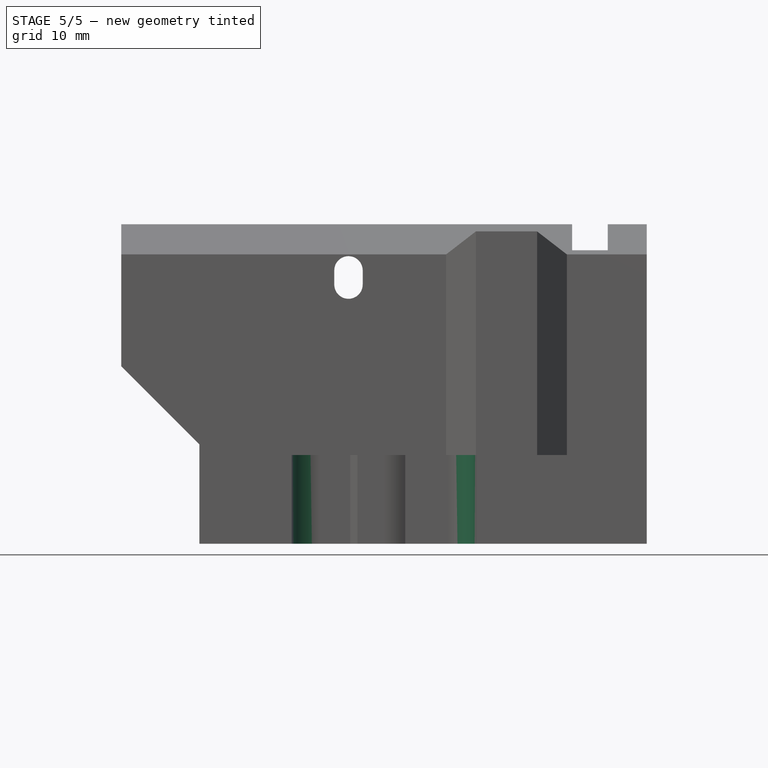
[diagram: stage 5 of 5 — front view after this stage's code; geometry added in this stage tinted green]
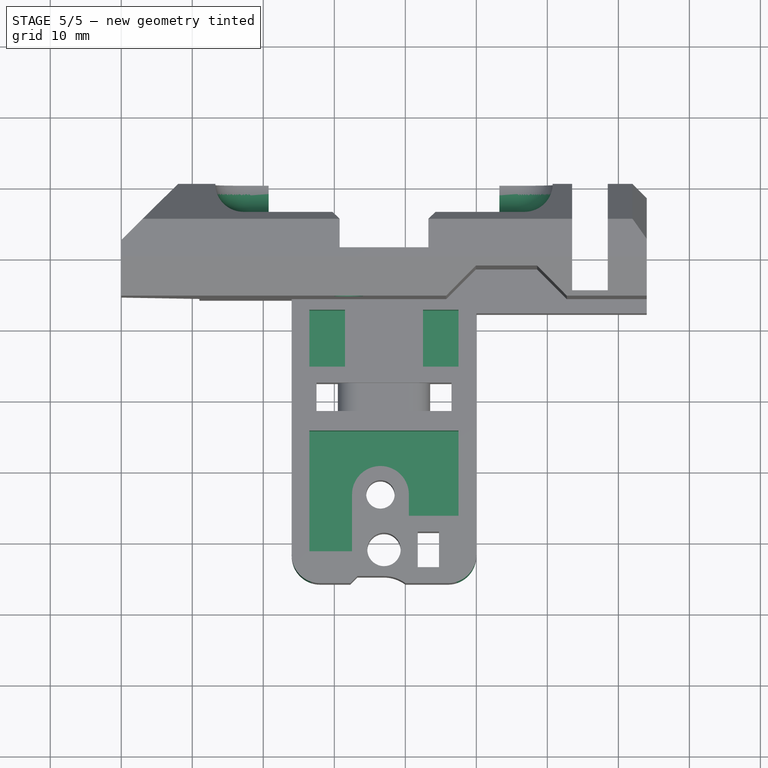
[diagram: stage 5 of 5 — top view after this stage's code; geometry added in this stage tinted green]
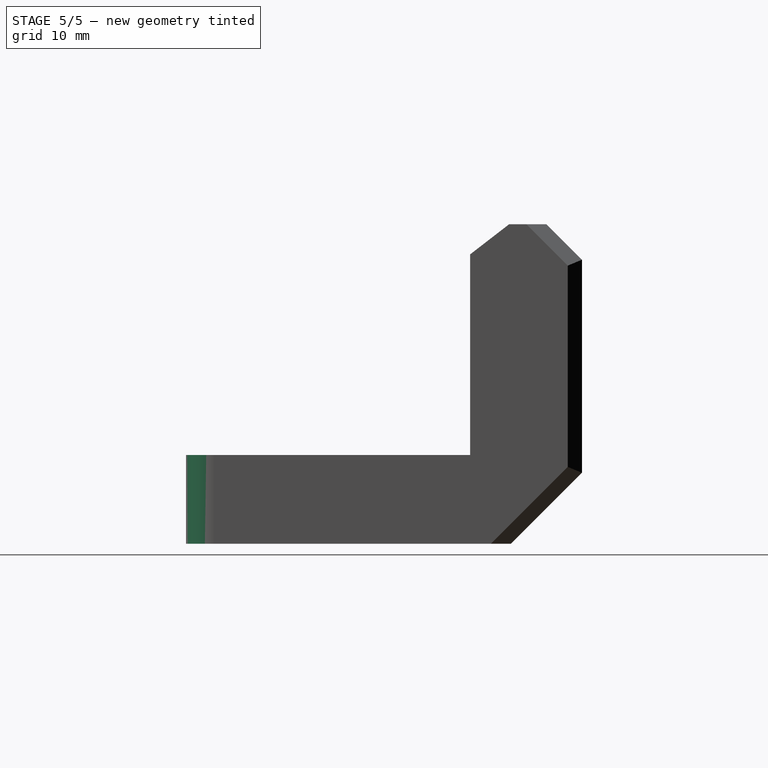
[diagram: stage 5 of 5 — right view after this stage's code; geometry added in this stage tinted green]
FEATURE [PartDesign::Fillet] Fillet003
  Base = -> Fillet002 [Edge235,Edge23]
  BaseFeature = -> Fillet002
  Radius = 3.99
FEATURE [PartDesign::Fillet] Fillet004
  Base = -> Fillet003 [Edge202,Edge191]
  BaseFeature = -> Fillet003
  Radius = 4
FEATURE [Sketcher::SketchObject] Sketch017
  MapMode = 5
  Placement = pos=(0,0,0) rot=(0,0.707107,0.707107;3.14159rad)
  Support = -> [Fillet004]
  sketch-geometry (4):
    g0: ArcOfCircle CenterX=-32 CenterY=38.5 CenterZ=0 NormalX=0 NormalY=0 NormalZ=1 AngleXU=0 Radius=2 StartAngle=5.6e-15 EndAngle=3.14159
    g1: ArcOfCircle CenterX=-32 CenterY=36.5 CenterZ=0 NormalX=0 NormalY=0 NormalZ=1 AngleXU=0 Radius=2 StartAngle=3.14159 EndAngle=6.28319
    g2: LineSegment StartX=-34 StartY=38.5 StartZ=0 EndX=-34 EndY=36.5 EndZ=0
    g3: LineSegment StartX=-30 StartY=38.5 StartZ=0 EndX=-30 EndY=36.5 EndZ=0
  constraints (10):
    c: Tangent(g0,g3) = 1.5708
    c: Tangent(g0,g2) = -1.5708
    c: Tangent(g2,g1) = -1.5708
    c: Tangent(g3,g1) = 1.5708
    c: Vertical(g2)
    c: Equal(g0,g1)
    c: Radius(g1) = 2
    c: DistanceY(g3,g3) = 2
    c: DistanceX(g0) = -32
    c: DistanceY(g0) = 38.5
FEATURE [PartDesign::Pocket] Pocket014
  BaseFeature = -> Fillet004
  Length = 5
  Length2 = 100
  Profile = -> Sketch017
  Refine = true
  Type = 1
FEATURE [Sketcher::SketchObject] Sketch018
  ExternalGeometry = -> [Pocket014]
  MapMode = 5
  Placement = pos=(0,-9,2e-15) rot=(0,0.707107,0.707107;3.14159rad)
  Support = -> [Pocket014]
  sketch-geometry (4):
    g0: ArcOfCircle CenterX=-32 CenterY=38.5 CenterZ=0 NormalX=0 NormalY=0 NormalZ=1 AngleXU=0 Radius=3.5 StartAngle=-5.06e-14 EndAngle=3.14159
    g1: ArcOfCircle CenterX=-32 CenterY=36.5 CenterZ=0 NormalX=0 NormalY=0 NormalZ=1 AngleXU=0 Radius=3.5 StartAngle=3.14159 EndAngle=6.28319
    g2: LineSegment StartX=-35.5 StartY=38.5 StartZ=0 EndX=-35.5 EndY=36.5 EndZ=0
    g3: LineSegment StartX=-28.5 StartY=38.5 StartZ=0 EndX=-28.5 EndY=36.5 EndZ=0
  constraints (9):
    c: Tangent(g0,g3) = 1.5708
    c: Tangent(g0,g2) = -1.5708
    c: Tangent(g2,g1) = -1.5708
    c: Tangent(g3,g1) = 1.5708
    c: Vertical(g2)
    c: Radius(g0) = 3.5
    c: Coincident(g0,g-3)
    c: Vertical(g3)
    c: DistanceY(g3,g3) = 2
FEATURE [PartDesign::Pocket] Pocket015
  BaseFeature = -> Pocket014
  Length = 2
  Length2 = 100
  Profile = -> Sketch018
  Refine = true
  Type = 0
FEATURE [PartDesign::Chamfer] Chamfer003
  Base = -> Pocket015 [Edge226]
  BaseFeature = -> Pocket015
  Size = 1.49
FEATURE [Sketcher::SketchObject] Sketch019
  ExternalGeometry = -> [Chamfer003]
  MapMode = 5
  Placement = pos=(8e-16,3e-16,12.5) rot=(0,0,1;0rad)
  Support = -> [Chamfer003]
  sketch-geometry (21):
    g0: LineSegment StartX=26.5 StartY=-51.25 StartZ=0 EndX=26.5 EndY=-34.25 EndZ=0
    g1: LineSegment StartX=26.5 StartY=-34.25 StartZ=0 EndX=47.5 EndY=-34.25 EndZ=0
    g2: LineSegment StartX=47.5 StartY=-34.25 StartZ=0 EndX=47.5 EndY=-46.25 EndZ=0
    g3: LineSegment StartX=47.5 StartY=-46.25 StartZ=0 EndX=40.5 EndY=-46.25 EndZ=0
    g4: LineSegment StartX=40.5 StartY=-46.25 StartZ=0 EndX=40.5 EndY=-43.25 EndZ=0
    g5: LineSegment [constr] StartX=40.5 StartY=-43.25 StartZ=0 EndX=32.5 EndY=-43.25 EndZ=0
    g6: LineSegment StartX=32.5 StartY=-43.25 StartZ=0 EndX=32.5 EndY=-51.25 EndZ=0
    g7: LineSegment StartX=32.5 StartY=-51.25 StartZ=0 EndX=26.5 EndY=-51.25 EndZ=0
    g8: ArcOfCircle CenterX=36.5 CenterY=-43.25 CenterZ=0 NormalX=0 NormalY=0 NormalZ=1 AngleXU=0 Radius=4 StartAngle=-1.8e-15 EndAngle=3.14159
    g9: LineSegment StartX=26.5 StartY=-17.25 StartZ=0 EndX=31.5 EndY=-17.25 EndZ=0
    g10: LineSegment StartX=31.5 StartY=-17.25 StartZ=0 EndX=31.5 EndY=-25.25 EndZ=0
    g11: LineSegment StartX=31.5 StartY=-25.25 StartZ=0 EndX=26.5 EndY=-25.25 EndZ=0
    g12: LineSegment StartX=26.5 StartY=-25.25 StartZ=0 EndX=26.5 EndY=-17.25 EndZ=0
    g13: LineSegment StartX=42.5 StartY=-17.25 StartZ=0 EndX=47.5 EndY=-17.25 EndZ=0
    g14: LineSegment StartX=47.5 StartY=-17.25 StartZ=0 EndX=47.5 EndY=-25.25 EndZ=0
    g15: LineSegment StartX=47.5 StartY=-25.25 StartZ=0 EndX=42.5 EndY=-25.25 EndZ=0
    g16: LineSegment StartX=42.5 StartY=-25.25 StartZ=0 EndX=42.5 EndY=-17.25 EndZ=0
    g17: LineSegment [constr] StartX=31.5 StartY=-17.25 StartZ=0 EndX=42.5 EndY=-17.25 EndZ=0
    g18: LineSegment [constr] StartX=42.5 StartY=-17.25 StartZ=0 EndX=42.5 EndY=-25.25 EndZ=0
    g19: LineSegment [constr] StartX=42.5 StartY=-25.25 StartZ=0 EndX=31.5 EndY=-25.25 EndZ=0
    g20: LineSegment [constr] StartX=31.5 StartY=-25.25 StartZ=0 EndX=31.5 EndY=-17.25 EndZ=0
  constraints (58):
    c: Vertical(g0)
    c: Coincident(g0,g1)
    c: Horizontal(g1)
    c: Coincident(g1,g2)
    c: Vertical(g2)
    c: Coincident(g2,g3)
    c: Horizontal(g3)
    c: Coincident(g3,g4)
    c: Coincident(g4,g5)
    c: Horizontal(g5)
    c: Coincident(g5,g6)
    c: Vertical(g6)
    c: Coincident(g6,g7)
    c: Coincident(g7,g0)
    c: Horizontal(g7)
    c: Vertical(g4)
    c: Coincident(g8,g-3)
    c: Coincident(g8,g5)
    c: Coincident(g8,g4)
    c: PointOnObject(g8,g5)
    c: DistanceY(g6,g6) = 8
    c: DistanceY(g4,g4) = 3
    c: DistanceX(g0,g8) = 10
    c: DistanceX(g8,g1) = 11
    c: DistanceY(g2,g2) = 12
    c: Radius(g8) = 4
    c: Coincident(g9,g10)
    c: Coincident(g10,g11)
    c: Coincident(g11,g12)
    c: Coincident(g12,g9)
    c: Horizontal(g9)
    c: Horizontal(g11)
    c: Vertical(g10)
    c: Vertical(g12)
    c: Coincident(g13,g14)
    c: Coincident(g14,g15)
    c: Coincident(g15,g16)
    c: Coincident(g16,g13)
    c: Horizontal(g13)
    c: Horizontal(g15)
    c: Vertical(g14)
    c: Vertical(g16)
    c: Coincident(g17,g18)
    c: Coincident(g18,g19)
    c: Coincident(g19,g20)
    c: Coincident(g20,g17)
    c: Horizontal(g17)
    c: Horizontal(g19)
    c: Coincident(g17,g9)
    c: Coincident(g18,g15)
    c: Coincident(g13,g17)
    c: Coincident(g10,g19)
    c: Equal(g13,g9)
    c: PointOnObject(g0,g12)
    c: PointOnObject(g14,g2)
    c: DistanceY(g1,g14) = 9
    c: DistanceY(g12,g12) = 8
    c: DistanceX(g9,g9) = 5
FEATURE [PartDesign::Pocket] Pocket016
  BaseFeature = -> Chamfer003
  Length = 7
  Length2 = 100
  Profile = -> Sketch019
  Refine = true
  Type = 0
FEATURE [PartDesign::Body] Body
  Group = -> [Sketch,Pad,Sketch001,Pocket,Sketch002,Pocket001,Sketch003,Pocket002,Sketch004,Pocket003,Sketch005,Pocket004,Sketch006,Pocket005,Sketch007,Pocket006,Sketch008,Pocket007,Sketch009,Pocket008,Sketch010,Pocket009,Sketch011,Pad001,Sketch012,Pocket010,Sketch013,Pocket011,Sketch014,Pocket012,Sketch015,Pad002,Sketch016,Pocket013,Chamfer,Fillet,Chamfer001,Chamfer002,Fillet001,Fillet002,Fillet003,Fillet004,+7 more]
  Origin = -> Origin
  Tip = -> Pocket016
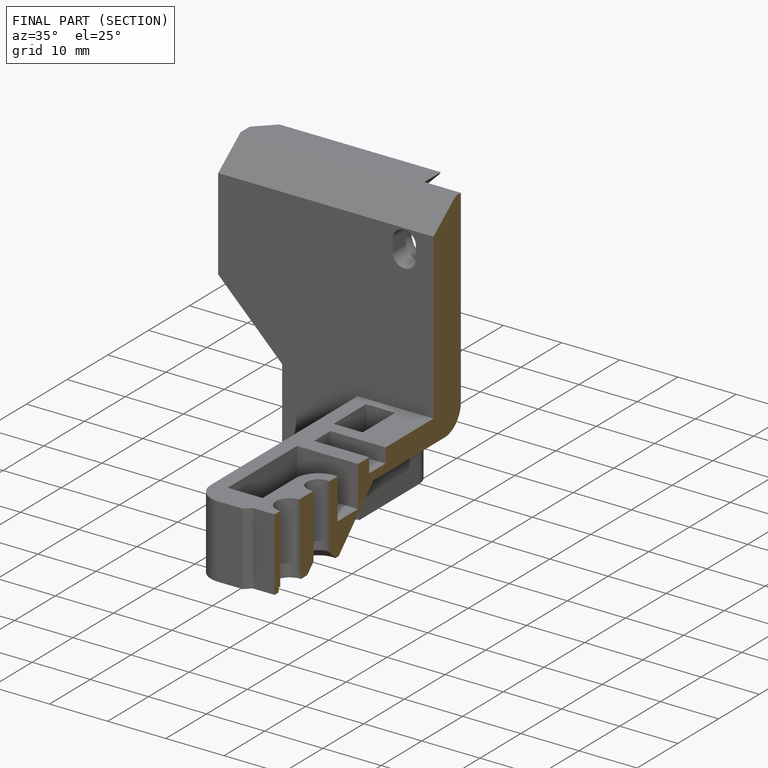
[diagram: finished part — half-section view (interior)]
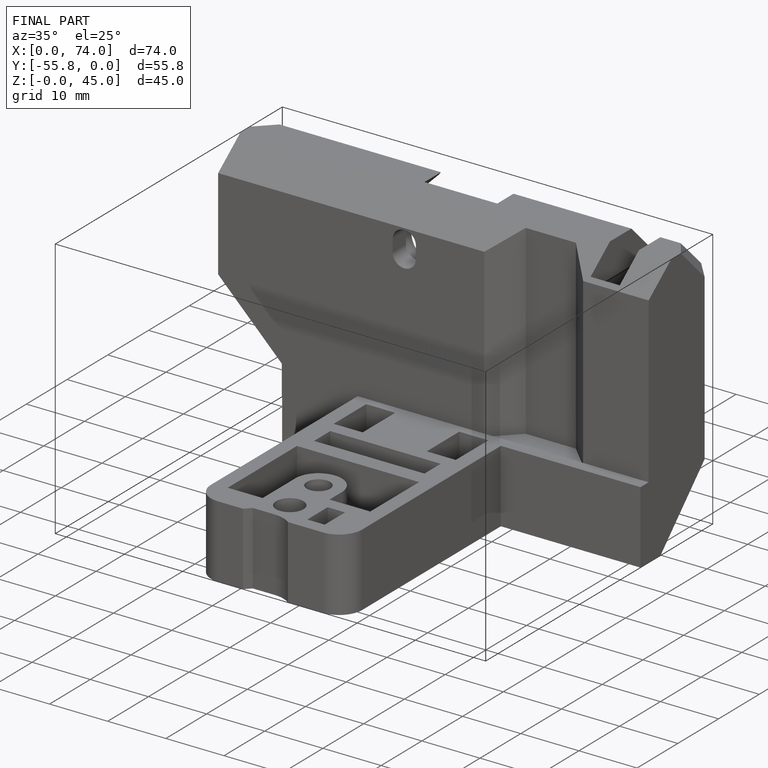
[diagram: finished part — iso view with bounding-box wireframe]
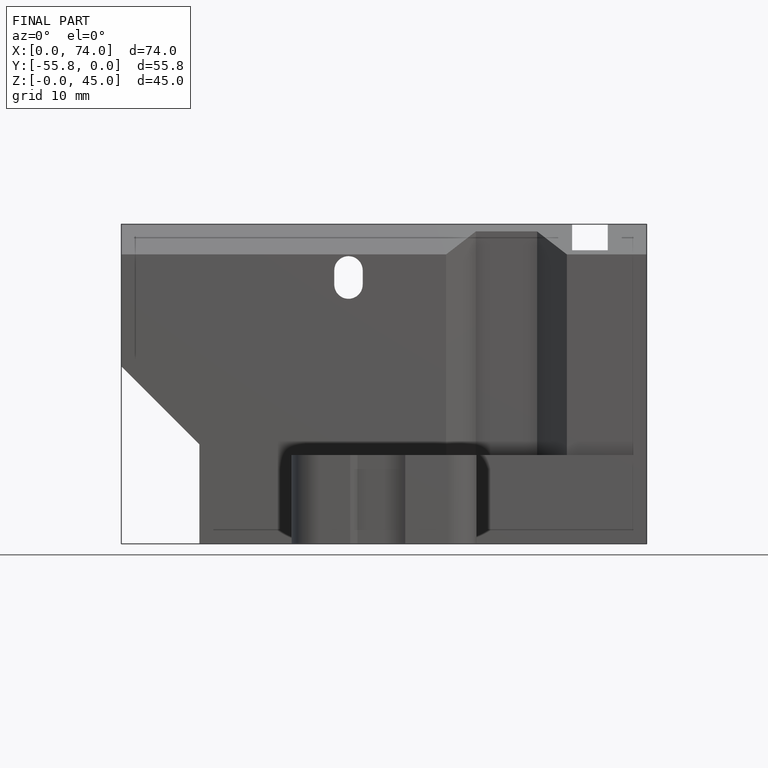
[diagram: finished part — front view with bounding-box wireframe]
